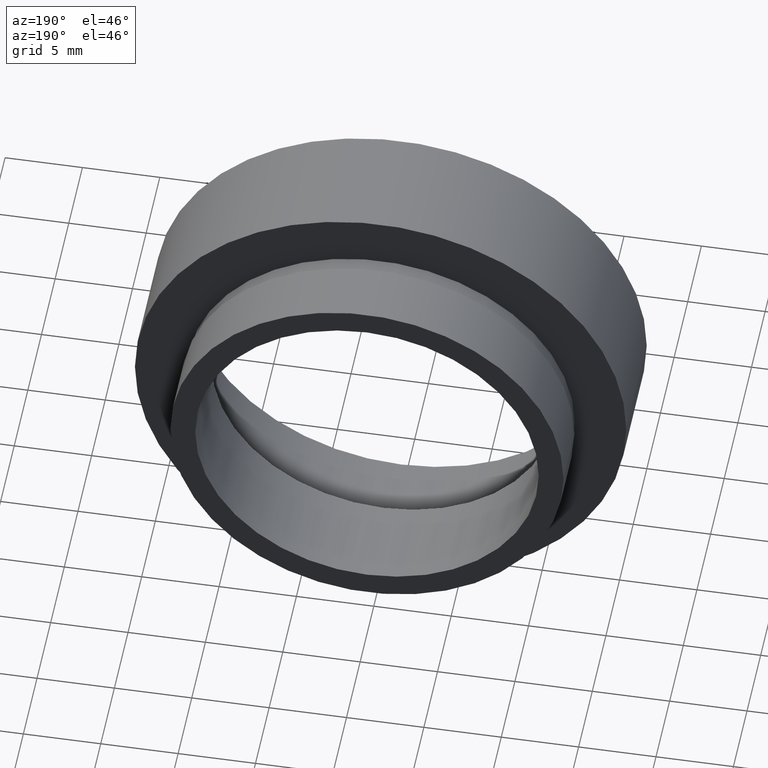
[diagram: clean part render]
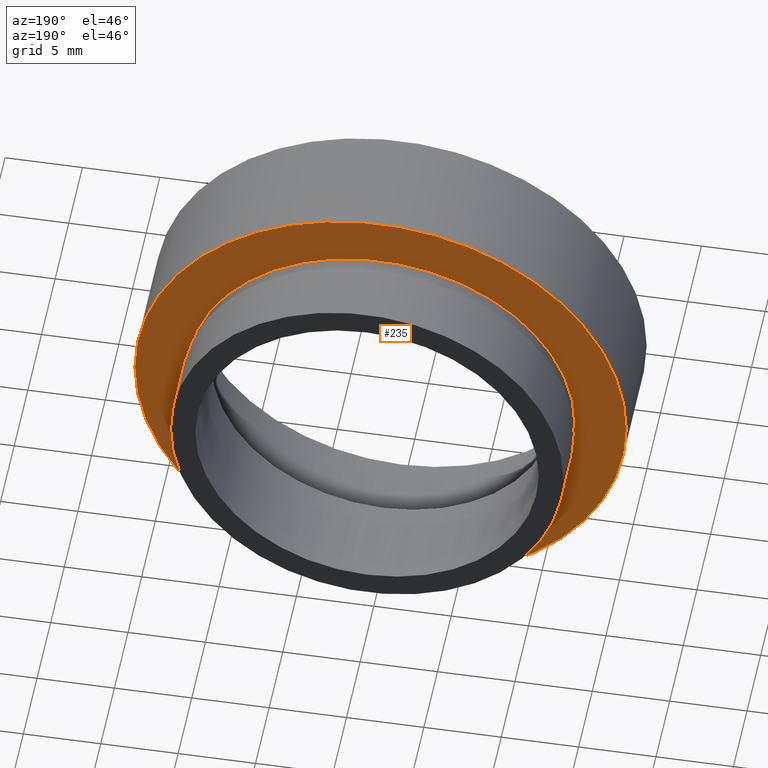
[diagram: same view with one face highlighted and labeled with its STEP entity id]
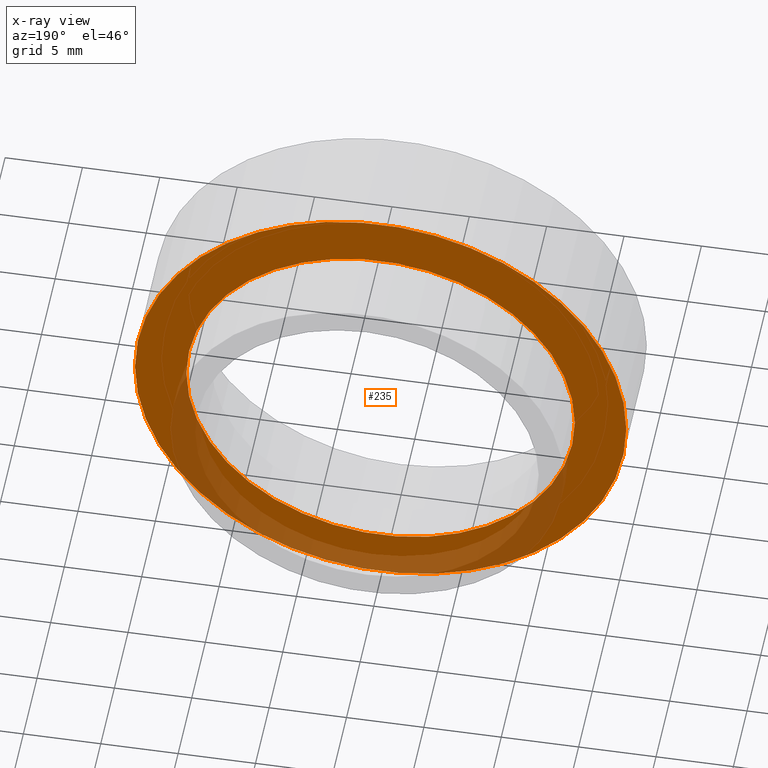
[diagram: x-ray of the same camera — body ghosted, the highlighted face saturated]
A machine part, auxiliary view. The second image highlights one B-rep face of the part: STEP entity #235.
The next image is the same camera in x-ray: the body ghosted, the highlighted face saturated — about 23% of this face is hidden behind the body in this view.
In plain terms, the highlighted planar face has unit normal (0, -1, 0).
Its self-contained STEP definition (entity closure, byte-faithful):
#25 = ORIENTED_EDGE ( 'NONE', *, *, #433, .F. ) ;
#83 = DIRECTION ( 'NONE',  ( 1.224646799147351000E-016, -1.000000000000000000, 0.0000000000000000000 ) ) ;
#85 = EDGE_CURVE ( 'NONE', #279, #135, #240, .T. ) ;
#105 = DIRECTION ( 'NONE',  ( -1.000000000000000000, -1.382249781654826400E-016, 0.0000000000000000000 ) ) ;
#113 = CIRCLE ( 'NONE', #306, 12.55000000000000100 ) ;
#117 = DIRECTION ( 'NONE',  ( -1.000000000000000000, -1.092739197465705300E-016, 0.0000000000000000000 ) ) ;
#128 = ORIENTED_EDGE ( 'NONE', *, *, #182, .F. ) ;
#129 = AXIS2_PLACEMENT_3D ( 'NONE', #410, #83, #246 ) ;
#135 = VERTEX_POINT ( 'NONE', #606 ) ;
#141 = EDGE_LOOP ( 'NONE', ( #550, #209 ) ) ;
#149 = AXIS2_PLACEMENT_3D ( 'NONE', #559, #324, #117 ) ;
#168 = FACE_BOUND ( 'NONE', #364, .T. ) ;
#173 = VERTEX_POINT ( 'NONE', #582 ) ;
#182 = EDGE_CURVE ( 'NONE', #200, #173, #272, .T. ) ;
#200 = VERTEX_POINT ( 'NONE', #320 ) ;
#209 = ORIENTED_EDGE ( 'NONE', *, *, #419, .T. ) ;
#226 = PLANE ( 'NONE',  #129 ) ;
#235 = ADVANCED_FACE ( 'NONE', ( #168, #260 ), #226, .F. ) ;
#240 = CIRCLE ( 'NONE', #149, 15.87500000000000000 ) ;
#242 = CARTESIAN_POINT ( 'NONE',  ( 1.149455719078122700E-015, 7.499999999999998200, 0.0000000000000000000 ) ) ;
#246 = DIRECTION ( 'NONE',  ( 1.000000000000000000, 1.224646799147351000E-016, 0.0000000000000000000 ) ) ;
#260 = FACE_OUTER_BOUND ( 'NONE', #141, .T. ) ;
#272 = CIRCLE ( 'NONE', #529, 12.55000000000000100 ) ;
#279 = VERTEX_POINT ( 'NONE', #591 ) ;
#289 = AXIS2_PLACEMENT_3D ( 'NONE', #242, #554, #499 ) ;
#306 = AXIS2_PLACEMENT_3D ( 'NONE', #356, #585, #456 ) ;
#311 = CARTESIAN_POINT ( 'NONE',  ( 1.149455719078122700E-015, 7.499999999999998200, 0.0000000000000000000 ) ) ;
#320 = CARTESIAN_POINT ( 'NONE',  ( 12.55000000000000200, 7.500000000000000000, 1.536931732929928400E-015 ) ) ;
#324 = DIRECTION ( 'NONE',  ( -1.224646799147351000E-016, 1.000000000000000000, -0.0000000000000000000 ) ) ;
#356 = CARTESIAN_POINT ( 'NONE',  ( 1.149455719078122700E-015, 7.499999999999998200, 0.0000000000000000000 ) ) ;
#364 = EDGE_LOOP ( 'NONE', ( #25, #128 ) ) ;
#410 = CARTESIAN_POINT ( 'NONE',  ( 12.55000000000000200, 7.500000000000000000, 0.0000000000000000000 ) ) ;
#419 = EDGE_CURVE ( 'NONE', #135, #279, #595, .T. ) ;
#433 = EDGE_CURVE ( 'NONE', #173, #200, #113, .T. ) ;
#456 = DIRECTION ( 'NONE',  ( -1.000000000000000000, -1.382249781654826400E-016, 0.0000000000000000000 ) ) ;
#499 = DIRECTION ( 'NONE',  ( -1.000000000000000000, -1.092739197465705300E-016, 0.0000000000000000000 ) ) ;
#520 = DIRECTION ( 'NONE',  ( -1.224646799147351000E-016, 1.000000000000000000, -0.0000000000000000000 ) ) ;
#529 = AXIS2_PLACEMENT_3D ( 'NONE', #311, #520, #105 ) ;
#550 = ORIENTED_EDGE ( 'NONE', *, *, #85, .T. ) ;
#554 = DIRECTION ( 'NONE',  ( -1.224646799147351000E-016, 1.000000000000000000, -0.0000000000000000000 ) ) ;
#559 = CARTESIAN_POINT ( 'NONE',  ( 1.149455719078122700E-015, 7.499999999999998200, 0.0000000000000000000 ) ) ;
#582 = CARTESIAN_POINT ( 'NONE',  ( -12.54999999999999900, 7.499999999999996400, 0.0000000000000000000 ) ) ;
#585 = DIRECTION ( 'NONE',  ( -1.224646799147351000E-016, 1.000000000000000000, -0.0000000000000000000 ) ) ;
#591 = CARTESIAN_POINT ( 'NONE',  ( -15.87500000000000000, 7.499999999999996400, 0.0000000000000000000 ) ) ;
#595 = CIRCLE ( 'NONE', #289, 15.87500000000000000 ) ;
#606 = CARTESIAN_POINT ( 'NONE',  ( 15.87500000000000000, 7.500000000000000000, 1.944126793646423200E-015 ) ) ;